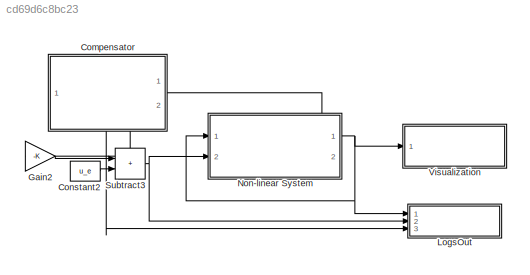
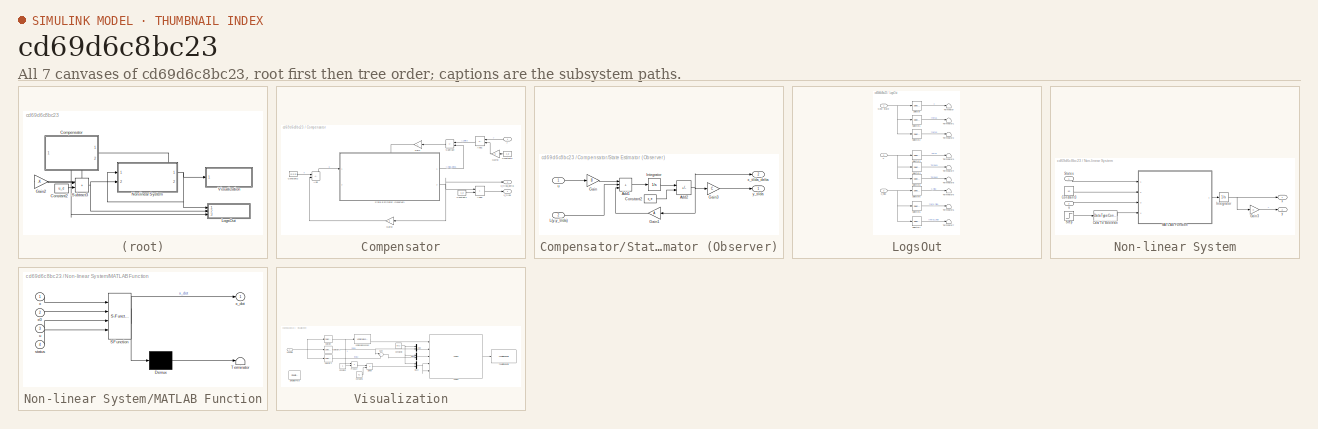
[diagram: thumbnail index - all 7 canvases of the model, root first then tree order]
MODEL slx_cd69d6c8bc23
KIND model
CONFIG AbsTol = auto
CONFIG EnableMultiTasking = off
CONFIG FixedStep = auto
CONFIG MaxStep = auto
CONFIG MinStep = auto
CONFIG RelTol = 1e-3
CONFIG SampleTimeConstraint = Unconstrained
CONFIG SolverName = VariableStepAuto
CONFIG StartTime = 0.0
CONFIG StopTime = 10.0
BLOCK [SubSystem] Compensator
  PortSchema = {"entries":[{"content":{"sides":[{"content":{"connectorIds":["Out1","Out2"]},"type":"ConnectorPlacement.EquallySpacedRectSide","uuid":"fa5a8305-86ae-432c-9810-dcf02cae709e"},{"content":{"connectorIds":["In1"],"side":"RIGHT"},"type":"ConnectorPlacement.EquallySpacedRectSide","uuid":"5b9e218f-8372-497e-90c9-36ba94e4ea20"},{"content":{"connectorIds":[],"side":"TOP"},"type":"ConnectorPlacement.Equally...<+247ch>
  Ports = [1, 2]
  RequestExecContextInheritance = off
BLOCK [Sum] Compensator/Add
  IconShape = rectangular
  Inputs = +-
  Ports = [2, 1]
BLOCK [Sum] Compensator/Add1
  IconShape = rectangular
  Inputs = +-
  Ports = [2, 1]
BLOCK [Sum] Compensator/Add2
  IconShape = rectangular
  Ports = [2, 1]
BLOCK [Constant] Compensator/Constant1
  Value = x_e
BLOCK [Constant] Compensator/Constant2
  Value = [0;0;0]
BLOCK [Constant] Compensator/Constant3
  Value = x_e
BLOCK [Gain] Compensator/Gain
  Gain = L
  Multiplication = Matrix(K*u)
BLOCK [Gain] Compensator/Gain2
  Gain = K
  Multiplication = Matrix(K*u)
BLOCK [Gain] Compensator/Gain3
  Gain = C
  Multiplication = Matrix(K*u)
BLOCK [SubSystem] Compensator/State Estimator (Observer)
  PortSchema = {"entries":[{"content":{"sides":[{"content":{"connectorIds":["In1"]},"type":"ConnectorPlacement.EquallySpacedRectSide","uuid":"af437ed9-8515-47ce-9bf3-57578eb1cf2e"},{"content":{"connectorIds":["Out1","Out2"],"side":"RIGHT"},"type":"ConnectorPlacement.EquallySpacedRectSide","uuid":"1ea6d729-9487-4493-ae4f-2f3f5c430ca0"},{"content":{"connectorIds":["In2"],"side":"TOP"},"type":"ConnectorPlacement.Eq...<+252ch>
  Ports = [2, 2]
  RequestExecContextInheritance = off
BLOCK [Sum] Compensator/State Estimator (Observer)/Add1
  IconShape = rectangular
  Inputs = +++
  Ports = [3, 1]
BLOCK [Sum] Compensator/State Estimator (Observer)/Add2
  IconShape = rectangular
  Inputs = +-
  Ports = [2, 1]
BLOCK [Constant] Compensator/State Estimator (Observer)/Constant2
  Value = x_e
BLOCK [Gain] Compensator/State Estimator (Observer)/Gain
  Gain = B
  Multiplication = Matrix(K*u)
BLOCK [Gain] Compensator/State Estimator (Observer)/Gain1
  Gain = A
  Multiplication = Matrix(K*u)
BLOCK [Gain] Compensator/State Estimator (Observer)/Gain3
  Gain = C
  Multiplication = Matrix(K*u)
BLOCK [Integrator] Compensator/State Estimator (Observer)/Integrator
  InitialCondition = [x0.x;0;0;x0.x_dot;x0.theta1_dot;x0.theta2_dot]
  Ports = [1, 1]
BLOCK [Inport] Compensator/State Estimator (Observer)/L(y-y_tilda)
  Port = 2
BLOCK [Inport] Compensator/State Estimator (Observer)/u
BLOCK [Outport] Compensator/State Estimator (Observer)/x_tilda_delta
  Port = 2
BLOCK [Outport] Compensator/State Estimator (Observer)/y_tilda
BLOCK [Sum] Compensator/Subtract
  IconShape = rectangular
  Inputs = +-
  Ports = [2, 1]
BLOCK [Outport] Compensator/x_tilda
BLOCK [Outport] Compensator/x_tilda_delta
  Port = 2
BLOCK [Inport] Compensator/y
BLOCK [Constant] Constant2
  Value = u_e
BLOCK [Gain] Gain2
  Gain = -K
  Multiplication = Matrix(K*u)
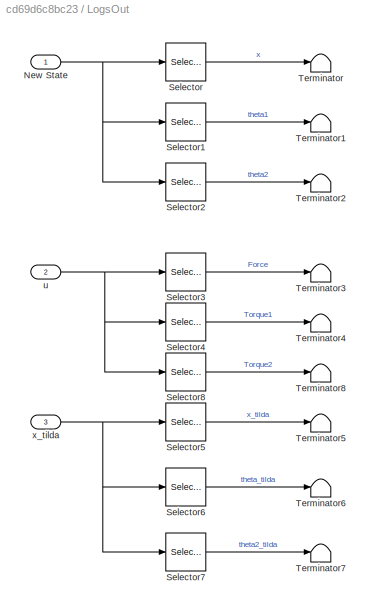
BLOCK [SubSystem] LogsOut
  Ports = [3]
  RequestExecContextInheritance = off
BLOCK [Inport] LogsOut/New State
BLOCK [Selector] LogsOut/Selector
  IndexOptions = Index vector (dialog)
  Indices = 1
  InputPortWidth = 6
  OutputSizes = 1
  Ports = [1, 1]
BLOCK [Selector] LogsOut/Selector1
  IndexOptions = Index vector (dialog)
  Indices = 2
  InputPortWidth = 6
  OutputSizes = 1
  Ports = [1, 1]
BLOCK [Selector] LogsOut/Selector2
  IndexOptions = Index vector (dialog)
  Indices = 3
  InputPortWidth = 6
  OutputSizes = 1
  Ports = [1, 1]
BLOCK [Selector] LogsOut/Selector3
  IndexOptions = Index vector (dialog)
  Indices = 1
  InputPortWidth = 3
  OutputSizes = 1
  Ports = [1, 1]
BLOCK [Selector] LogsOut/Selector4
  IndexOptions = Index vector (dialog)
  Indices = 2
  InputPortWidth = 3
  OutputSizes = 1
  Ports = [1, 1]
BLOCK [Selector] LogsOut/Selector5
  IndexOptions = Index vector (dialog)
  Indices = 1
  InputPortWidth = 6
  OutputSizes = 1
  Ports = [1, 1]
BLOCK [Selector] LogsOut/Selector6
  IndexOptions = Index vector (dialog)
  Indices = 2
  InputPortWidth = 6
  OutputSizes = 1
  Ports = [1, 1]
BLOCK [Selector] LogsOut/Selector7
  IndexOptions = Index vector (dialog)
  Indices = 3
  InputPortWidth = 6
  OutputSizes = 1
  Ports = [1, 1]
BLOCK [Selector] LogsOut/Selector8
  IndexOptions = Index vector (dialog)
  Indices = 3
  InputPortWidth = 3
  OutputSizes = 1
  Ports = [1, 1]
BLOCK [Terminator] LogsOut/Terminator
BLOCK [Terminator] LogsOut/Terminator1
BLOCK [Terminator] LogsOut/Terminator2
BLOCK [Terminator] LogsOut/Terminator3
BLOCK [Terminator] LogsOut/Terminator4
BLOCK [Terminator] LogsOut/Terminator5
BLOCK [Terminator] LogsOut/Terminator6
BLOCK [Terminator] LogsOut/Terminator7
BLOCK [Terminator] LogsOut/Terminator8
BLOCK [Inport] LogsOut/u
  Port = 2
BLOCK [Inport] LogsOut/x_tilda
  Port = 3
BLOCK [SubSystem] Non-linear System
  PortSchema = {"entries":[{"content":{"sides":[{"content":{"connectorIds":["Out2","In1","In2"]},"type":"ConnectorPlacement.EquallySpacedRectSide","uuid":"e87e95e4-d445-42a4-8bb6-5db1cea140fd"},{"content":{"connectorIds":["Out1"],"side":"RIGHT"},"type":"ConnectorPlacement.EquallySpacedRectSide","uuid":"a4594086-6ae6-4dfa-940b-8e5ad9761096"},{"content":{"connectorIds":[],"side":"TOP"},"type":"ConnectorPlacement.E...<+253ch>
  Ports = [2, 2]
  RequestExecContextInheritance = off
BLOCK [DataTypeConversion] Non-linear System/Cast To Boolean
  OutDataTypeStr = boolean
  RndMeth = Floor
  SaturateOnIntegerOverflow = off
BLOCK [Constant] Non-linear System/Constant3
  OutDataTypeStr = Bus: State_bus
  Value = x0
  VectorParams1D = off
BLOCK [Gain] Non-linear System/Gain3
  Gain = C
  Multiplication = Matrix(K*u)
BLOCK [Integrator] Non-linear System/Integrator
  InitialCondition = [x0.x;x0.theta1;x0.theta2;x0.x_dot;x0.theta1_dot;x0.theta2_dot]
  Ports = [1, 1]
BLOCK [SubSystem] Non-linear System/MATLAB Function
  ErrorFcn = Stateflow.Translate.translate
  PermitHierarchicalResolution = ExplicitOnly
  Ports = [4, 1]
  RequestExecContextInheritance = off
  SFBlockType = MATLAB Function
  TreatAsAtomicUnit = on
BLOCK [Demux] Non-linear System/MATLAB Function/ Demux 
  Outputs = 1
  Ports = [1, 1]
BLOCK [S-Function] Non-linear System/MATLAB Function/ SFunction 
  EnableBusSupport = on
  FunctionName = sf_sfun
  PortCounts = [4 2]
  Ports = [4, 2]
  SFcnIsStateOwnerBlock = off
  SFunctionDeploymentMode = off
  Tag = Stateflow S-Function 2
BLOCK [Terminator] Non-linear System/MATLAB Function/ Terminator 
BLOCK [Inport] Non-linear System/MATLAB Function/status
  Port = 4
BLOCK [Inport] Non-linear System/MATLAB Function/u
  Port = 3
BLOCK [Inport] Non-linear System/MATLAB Function/x
BLOCK [Inport] Non-linear System/MATLAB Function/x0
  Port = 2
BLOCK [Outport] Non-linear System/MATLAB Function/x_dot
BLOCK [Inport] Non-linear System/States
BLOCK [Step] Non-linear System/Step
  SampleTime = 0
  Time = .01
BLOCK [Inport] Non-linear System/u
  Port = 2
BLOCK [Outport] Non-linear System/x
BLOCK [Outport] Non-linear System/y
  Port = 2
BLOCK [Sum] Subtract3
  IconShape = rectangular
  Ports = [2, 1]
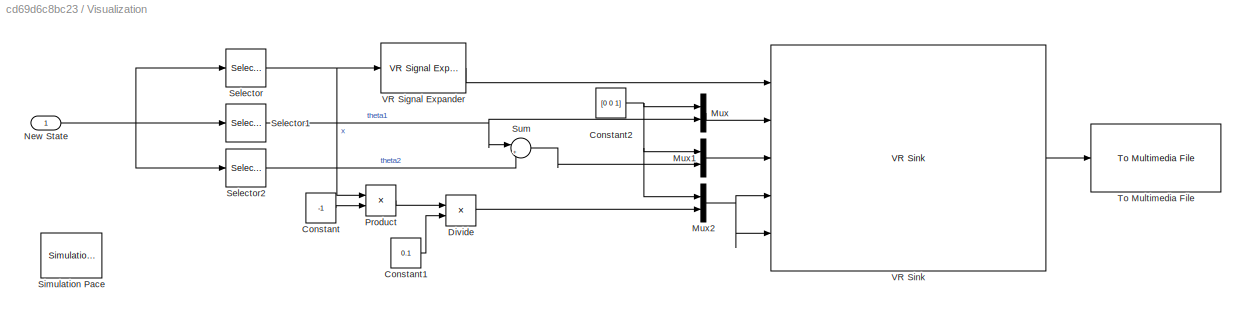
BLOCK [SubSystem] Visualization
  Ports = [1]
  RequestExecContextInheritance = off
BLOCK [Constant] Visualization/Constant
  Value = -1
BLOCK [Constant] Visualization/Constant1
  Value = 0.1
BLOCK [Constant] Visualization/Constant2
  Value = [0 0 1]
BLOCK [Product] Visualization/Divide
  Inputs = */
  Ports = [2, 1]
BLOCK [Mux] Visualization/Mux
  DisplayOption = bar
  Inputs = 2
  Ports = [2, 1]
BLOCK [Mux] Visualization/Mux1
  DisplayOption = bar
  Inputs = 2
  Ports = [2, 1]
BLOCK [Mux] Visualization/Mux2
  DisplayOption = bar
  Inputs = 2
  Ports = [2, 1]
BLOCK [Inport] Visualization/New State
BLOCK [Product] Visualization/Product
  Ports = [2, 1]
BLOCK [Selector] Visualization/Selector
  IndexOptions = Index vector (dialog)
  Indices = 1
  InputPortWidth = 6
  OutputSizes = 1
  Ports = [1, 1]
BLOCK [Selector] Visualization/Selector1
  IndexOptions = Index vector (dialog)
  Indices = 2
  InputPortWidth = 6
  OutputSizes = 1
  Ports = [1, 1]
BLOCK [Selector] Visualization/Selector2
  IndexOptions = Index vector (dialog)
  Indices = 3
  InputPortWidth = 6
  OutputSizes = 1
  Ports = [1, 1]
BLOCK [Reference] Visualization/Simulation Pace  REF=aerolibanimutils/Simulation Pace
  AttributesFormatString = %<SleepMode>\n%<SimulationPace> sec/sec
  Ports = []
  SourceBlock = aerolibanimutils/Simulation Pace
  SourceProductBaseCode = AE
  SourceType = Simulation Pace
BLOCK [Sum] Visualization/Sum
  Inputs = |+-
  Ports = [2, 1]
BLOCK [Reference] Visualization/To Multimedia File  REF=dspvision/To Multimedia File
  Ports = [1]
  SourceBlock = dspvision/To Multimedia File
  SourceProductBaseCode = DS,HW,VP
  SourceType = To Multimedia File
BLOCK [Reference] Visualization/VR Signal Expander  REF=vrlib/VR Signal Expander
  Ports = [1, 1]
  SourceBlock = vrlib/VR Signal Expander
  SourceProductBaseCode = SL
  SourceType = VR Signal Expander
BLOCK [Reference] Visualization/VR Sink  REF=vrlib/VR Sink
  InstantiateOnLoad = on
  Ports = [5, 1]
  SourceBlock = vrlib/VR Sink
  SourceProductBaseCode = SL
  SourceType = Virtual Reality Sink
LINE Compensator/Add1:1 -> Compensator/Subtract:1
LINE Compensator/Add2:1 -> Compensator/x_tilda:1
LINE Compensator/Add:1 -> Compensator/State Estimator (Observer):1
LINE Compensator/Constant1:1 -> Compensator/Add2:2
LINE Compensator/Constant2:1 -> Compensator/Add:1
LINE Compensator/Constant3:1 -> Compensator/Gain3:1
LINE Compensator/Gain2:1 -> Compensator/Add:2
LINE Compensator/Gain3:1 -> Compensator/Add1:2
LINE Compensator/Gain:1 -> Compensator/State Estimator (Observer):2
LINE Compensator/State Estimator (Observer)/Add1:1 -> Compensator/State Estimator (Observer)/Integrator:1
NET Compensator/State Estimator (Observer)/Add2:1 -> Compensator/State Estimator (Observer)/Gain1:1, Compensator/State Estimator (Observer)/Gain3:1, Compensator/State Estimator (Observer)/x_tilda_delta:1
LINE Compensator/State Estimator (Observer)/Constant2:1 -> Compensator/State Estimator (Observer)/Add2:2
LINE Compensator/State Estimator (Observer)/Gain1:1 -> Compensator/State Estimator (Observer)/Add1:3
LINE Compensator/State Estimator (Observer)/Gain3:1 -> Compensator/State Estimator (Observer)/y_tilda:1
LINE Compensator/State Estimator (Observer)/Gain:1 -> Compensator/State Estimator (Observer)/Add1:1
LINE Compensator/State Estimator (Observer)/Integrator:1 -> Compensator/State Estimator (Observer)/Add2:1
LINE Compensator/State Estimator (Observer)/L(y-y_tilda):1 -> Compensator/State Estimator (Observer)/Add1:2
LINE Compensator/State Estimator (Observer)/u:1 -> Compensator/State Estimator (Observer)/Gain:1
LINE Compensator/State Estimator (Observer):1 -> Compensator/Subtract:2
NET Compensator/State Estimator (Observer):2 -> Compensator/Add2:1, Compensator/Gain2:1, Compensator/x_tilda_delta:1
LINE Compensator/Subtract:1 -> Compensator/Gain:1
LINE Compensator/y:1 -> Compensator/Add1:1
LINE Compensator:1 -> LogsOut:3
LINE Compensator:2 -> Gain2:1
LINE Constant2:1 -> Subtract3:2
LINE Gain2:1 -> Subtract3:1
NET LogsOut/New State:1 -> LogsOut/Selector1:1, LogsOut/Selector2:1, LogsOut/Selector:1
LINE LogsOut/Selector1:1 -> LogsOut/Terminator1:1
LINE LogsOut/Selector2:1 -> LogsOut/Terminator2:1
LINE LogsOut/Selector3:1 -> LogsOut/Terminator3:1
LINE LogsOut/Selector4:1 -> LogsOut/Terminator4:1
LINE LogsOut/Selector5:1 -> LogsOut/Terminator5:1
LINE LogsOut/Selector6:1 -> LogsOut/Terminator6:1
LINE LogsOut/Selector7:1 -> LogsOut/Terminator7:1
LINE LogsOut/Selector8:1 -> LogsOut/Terminator8:1
LINE LogsOut/Selector:1 -> LogsOut/Terminator:1
NET LogsOut/u:1 -> LogsOut/Selector3:1, LogsOut/Selector4:1, LogsOut/Selector8:1
NET LogsOut/x_tilda:1 -> LogsOut/Selector5:1, LogsOut/Selector6:1, LogsOut/Selector7:1
LINE Non-linear System/Cast To Boolean:1 -> Non-linear System/MATLAB Function:4
LINE Non-linear System/Constant3:1 -> Non-linear System/MATLAB Function:2
LINE Non-linear System/Gain3:1 -> Non-linear System/y:1
NET Non-linear System/Integrator:1 -> Non-linear System/Gain3:1, Non-linear System/x:1
LINE Non-linear System/MATLAB Function:1 -> Non-linear System/Integrator:1
LINE Non-linear System/States:1 -> Non-linear System/MATLAB Function:1
LINE Non-linear System/Step:1 -> Non-linear System/Cast To Boolean:1
LINE Non-linear System/u:1 -> Non-linear System/MATLAB Function:3
NET Non-linear System:1 -> LogsOut:1, Non-linear System:1, Visualization:1
LINE Non-linear System:2 -> Compensator:1
NET Subtract3:1 -> LogsOut:2, Non-linear System:2
LINE Visualization/Constant1:1 -> Visualization/Divide:2
NET Visualization/Constant2:1 -> Visualization/Mux1:1, Visualization/Mux2:1, Visualization/Mux:1
LINE Visualization/Constant:1 -> Visualization/Product:2
LINE Visualization/Divide:1 -> Visualization/Mux2:2
LINE Visualization/Mux1:1 -> Visualization/VR Sink:3
NET Visualization/Mux2:1 -> Visualization/VR Sink:4, Visualization/VR Sink:5
LINE Visualization/Mux:1 -> Visualization/VR Sink:2
NET Visualization/New State:1 -> Visualization/Selector1:1, Visualization/Selector2:1, Visualization/Selector:1
LINE Visualization/Product:1 -> Visualization/Divide:1
NET Visualization/Selector1:1 -> Visualization/Mux:2, Visualization/Sum:1
LINE Visualization/Selector2:1 -> Visualization/Sum:2
NET Visualization/Selector:1 -> Visualization/Product:1, Visualization/VR Signal Expander:1
LINE Visualization/Sum:1 -> Visualization/Mux1:2
LINE Visualization/VR Signal Expander:1 -> Visualization/VR Sink:1
LINE Visualization/VR Sink:1 -> Visualization/To Multimedia File:1
note: NET lines group one-source signal fan-out (src -> all destinations, sorted); 1:1 wires keep LINE
CHART Non-linear System/MATLAB Function states=1 transitions=1
  STATE_LABEL 'eML_blk_kernel()'
  STATE_LABEL 'SCRIPT:\nfunction x_dot  = Nonlinear_Dynamics(x,x0,u,status)\n    if status == false\n        x2 = x0.theta1;\n        x3 = x0.theta2;\n        x4 = x0.x_dot;\n        x5 = x0.theta1_dot;\n        x6 = x0.theta2_dot;\n        u1 = u(1);\n        u2 = u(2);\n        u3 = u(3);\n    else\n        x2 = x(2);\n        x3 = x(3);\n        x4 = x(4);\n        x5 = x(5);\n        x6 = x(6);\n        u1 = u(1);\n        u2...<+1197ch>'
CHART  states=0 transitions=0
